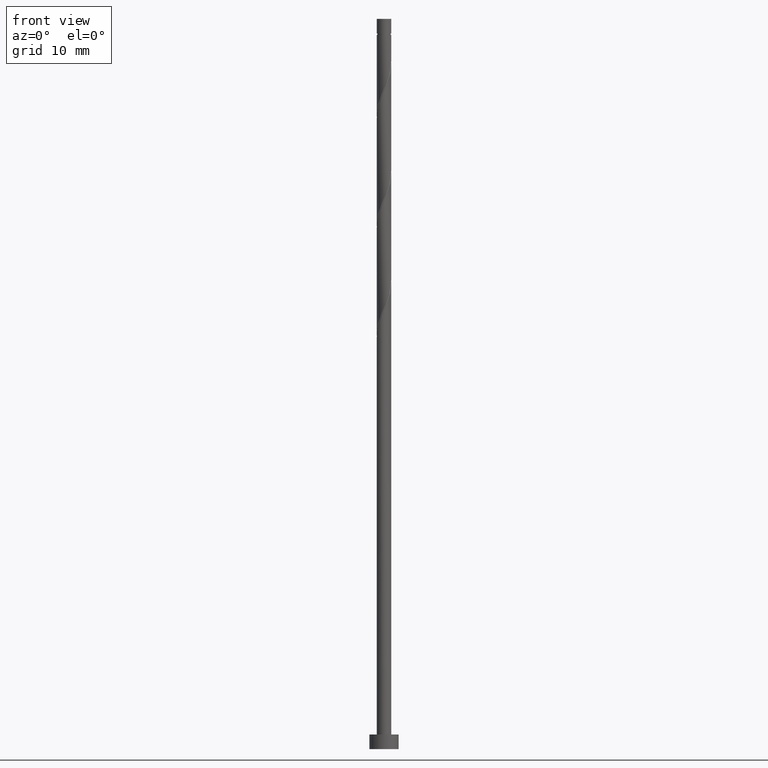
[diagram: clean part render]
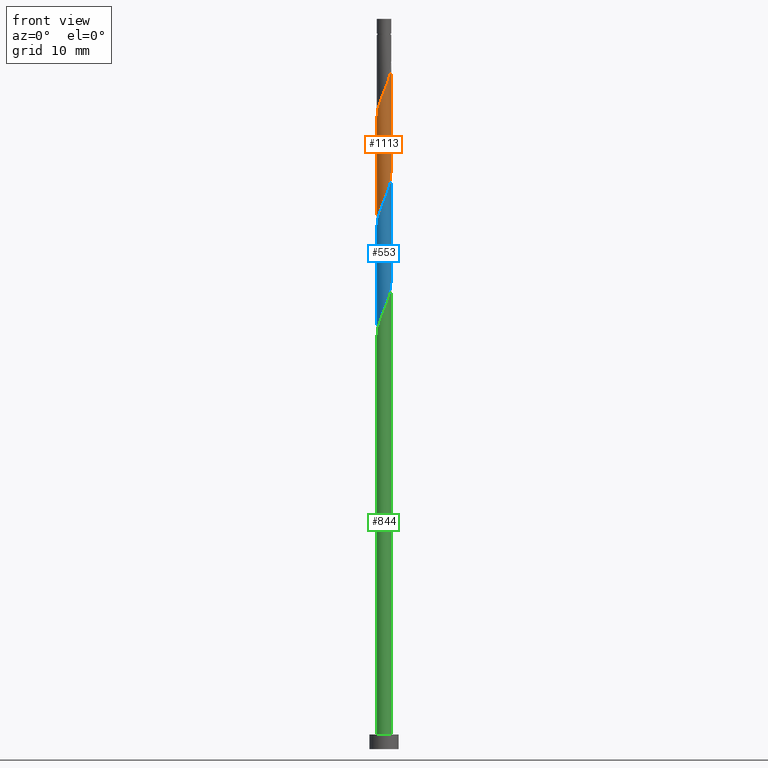
[diagram: same view with three faces highlighted in distinct colors, each labeled with its STEP entity id]
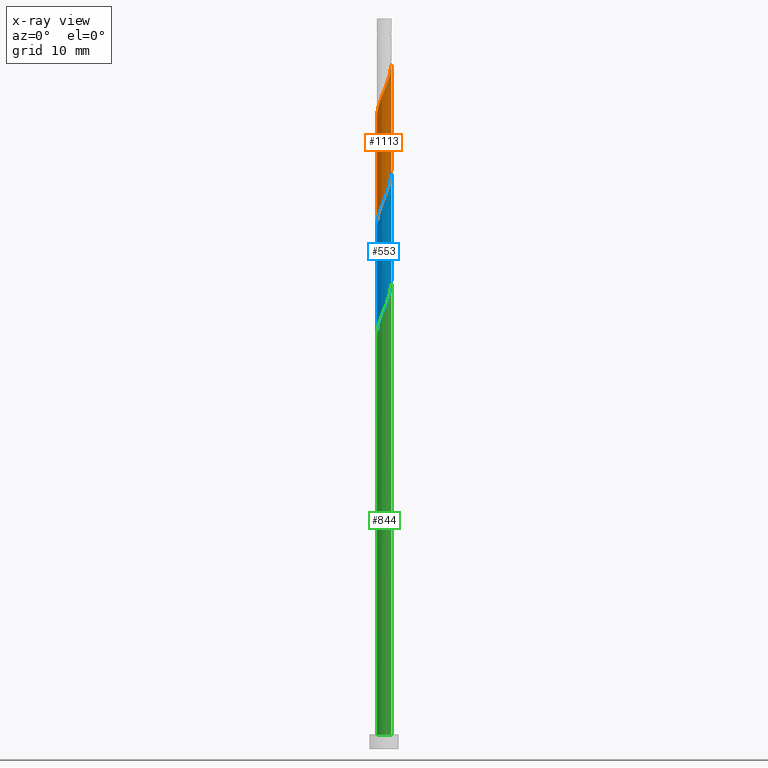
[diagram: x-ray of the same camera — body ghosted, the three highlighted faces saturated]
A machine part, front view with three faces highlighted in distinct colors.
The next image is the same camera in x-ray (body ghosted, the three faces saturated) — at least one of them is partly hidden behind the body in this view.
Their STEP definitions:

[orange] entity #1113 — the highlighted cylindrical surface (edge-blend (fillet) strip) has radius 1 mm, axis along (-0, -0, -1).
#12 = CARTESIAN_POINT ( 'NONE',  ( 0.000000000000000000, 0.000000000000000000, 100.0000000000000000 ) ) ;
#22 = CARTESIAN_POINT ( 'NONE',  ( -0.5630650428037469180, -0.8264125831401736288, 88.63333333333335418 ) ) ;
#31 = VERTEX_POINT ( 'NONE', #409 ) ;
#36 = CARTESIAN_POINT ( 'NONE',  ( -0.9116327376541120131, -0.4110057805399687791, 72.80000000000002558 ) ) ;
#45 =( BOUNDED_CURVE ( )  B_SPLINE_CURVE ( 2, ( #367, #835, #628, #1285, #1180, #818, #501, #246, #969, #267, #1066, #384, #140, #723, #599, #484, #36, #1050, #942, #961, #375 ),
 .UNSPECIFIED., .F., .T. ) 
 B_SPLINE_CURVE_WITH_KNOTS ( ( 3, 2, 2, 2, 2, 2, 2, 2, 2, 2, 3 ),
 ( 0.5585262615578963086, 0.5694444444444444198, 0.5833333333333333703, 0.5972222222222222099, 0.6111111111111111605, 0.6250000000000000000, 0.6388888888888888395, 0.6527777777777777901, 0.6666666666666666297, 0.6805555555555555802, 0.6835262615578967527 ),
 .UNSPECIFIED. ) 
 CURVE ( )  GEOMETRIC_REPRESENTATION_ITEM ( )  RATIONAL_B_SPLINE_CURVE ( ( 0.9475153373969255055, 0.9410068908218450767, 0.9523809523809528832, 0.9379121457259129713, 0.9523809523809528832, 0.9379121457259129713, 0.9523809523809528832, 0.9379121457259129713, 0.9523809523809528832, 0.9379121457259129713, 0.9523809523809528832, 0.9379121457259129713, 0.9523809523809528832, 0.9379121457259129713, 0.9523809523809528832, 0.9379121457259129713, 0.9523809523809528832, 0.9379121457259129713, 0.9523809523809528832, 0.9492862072850202226, 0.9475153373969248394 ) ) 
 REPRESENTATION_ITEM ( '' )  );
#46 = DIRECTION ( 'NONE',  ( -0.000000000000000000, -0.000000000000000000, -1.000000000000000000 ) ) ;
#59 = AXIS2_PLACEMENT_3D ( 'NONE', #12, #946, #1279 ) ;
#140 = CARTESIAN_POINT ( 'NONE',  ( -0.4341617696046366492, -0.9008349226211040950, 74.46666666666665435 ) ) ;
#152 = CARTESIAN_POINT ( 'NONE',  ( 0.9841041459904503741, -0.2502603323944278535, 93.21666666666666856 ) ) ;
#161 = CARTESIAN_POINT ( 'NONE',  ( 0.7160823004724661267, -0.6980158586665925480, 91.96666666666669698 ) ) ;
#172 = CARTESIAN_POINT ( 'NONE',  ( -1.000000000000000000, 0.000000000000000000, 100.0000000000000000 ) ) ;
#181 = CARTESIAN_POINT ( 'NONE',  ( -0.9625406160859104610, -0.2711375340762611774, 86.96666666666666856 ) ) ;
#211 = VERTEX_POINT ( 'NONE', #796 ) ;
#246 = CARTESIAN_POINT ( 'NONE',  ( 0.4173462071991564382, -0.9256961420802414242, 76.54999999999999716 ) ) ;
#261 = CARTESIAN_POINT ( 'NONE',  ( 0.8391613293177730970, -0.5717512286855108705, 92.38333333333331154 ) ) ;
#267 = CARTESIAN_POINT ( 'NONE',  ( 0.07557042402773136991, -1.012610643405466471, 75.71666666666666856 ) ) ;
#323 = EDGE_CURVE ( 'NONE', #31, #831, #345, .T. ) ;
#345 =( BOUNDED_CURVE ( )  B_SPLINE_CURVE ( 2, ( #1200, #863, #181, #1055, #506, #840, #22, #489, #363, #947, #1391, #1280, #729, #1411, #161, #261, #1171, #152, #458, #1145, #920 ),
 .UNSPECIFIED., .F., .T. ) 
 B_SPLINE_CURVE_WITH_KNOTS ( ( 3, 2, 2, 2, 2, 2, 2, 2, 2, 2, 3 ),
 ( 0.5585262615578964196, 0.5694444444444444198, 0.5833333333333332593, 0.5972222222222222099, 0.6111111111111111605, 0.6250000000000000000, 0.6388888888888888395, 0.6527777777777777901, 0.6666666666666667407, 0.6805555555555555802, 0.6835262615578969747 ),
 .UNSPECIFIED. ) 
 CURVE ( )  GEOMETRIC_REPRESENTATION_ITEM ( )  RATIONAL_B_SPLINE_CURVE ( ( 0.9475153373969233961, 0.9410068908218433004, 0.9523809523809509958, 0.9379121457259110839, 0.9523809523809509958, 0.9379121457259110839, 0.9523809523809509958, 0.9379121457259110839, 0.9523809523809509958, 0.9379121457259110839, 0.9523809523809509958, 0.9379121457259110839, 0.9523809523809509958, 0.9379121457259110839, 0.9523809523809509958, 0.9379121457259110839, 0.9523809523809509958, 0.9379121457259110839, 0.9523809523809509958, 0.9492862072850182242, 0.9475153373969227300 ) ) 
 REPRESENTATION_ITEM ( '' )  );
#363 = CARTESIAN_POINT ( 'NONE',  ( -0.2464583156134444175, -0.9691533927428536144, 89.46666666666669698 ) ) ;
#367 = CARTESIAN_POINT ( 'NONE',  ( 1.000000000000000222, -4.290968163101563064E-16, 79.28964864647366539 ) ) ;
#375 = CARTESIAN_POINT ( 'NONE',  ( -1.000000000000000000, -2.603187352281614199E-15, 71.78964864647365118 ) ) ;
#384 = CARTESIAN_POINT ( 'NONE',  ( -0.2753202675821139200, -0.9773893565945336315, 74.88333333333332575 ) ) ;
#409 = CARTESIAN_POINT ( 'NONE',  ( -1.000000000000000000, -8.581936326203144864E-17, 86.31035135352635734 ) ) ;
#458 = CARTESIAN_POINT ( 'NONE',  ( 0.9972268124083832896, -0.07442233948093021634, 93.63333333333335418 ) ) ;
#484 = CARTESIAN_POINT ( 'NONE',  ( -0.8391613293177733190, -0.5717512286855107595, 73.21666666666664014 ) ) ;
#489 = CARTESIAN_POINT ( 'NONE',  ( -0.4173462071991567157, -0.9256961420802413132, 89.04999999999999716 ) ) ;
#498 = EDGE_CURVE ( 'NONE', #831, #1196, #503, .T. ) ;
#501 = CARTESIAN_POINT ( 'NONE',  ( 0.5630650428037468069, -0.8264125831401737399, 76.96666666666666856 ) ) ;
#503 = LINE ( 'NONE', #1400, #1392 ) ;
#506 = CARTESIAN_POINT ( 'NONE',  ( -0.8117578158769209740, -0.5839942194600308278, 87.80000000000001137 ) ) ;
#599 = CARTESIAN_POINT ( 'NONE',  ( -0.7160823004724664598, -0.6980158586665924370, 73.63333333333332575 ) ) ;
#628 = CARTESIAN_POINT ( 'NONE',  ( 0.9625406160859105720, -0.2711375340762611219, 78.63333333333331154 ) ) ;
#646 = EDGE_CURVE ( 'NONE', #1196, #211, #45, .T. ) ;
#723 = CARTESIAN_POINT ( 'NONE',  ( -0.5930032716271594895, -0.8242804886476744475, 74.05000000000001137 ) ) ;
#729 = CARTESIAN_POINT ( 'NONE',  ( 0.4341617696046363717, -0.9008349226211040950, 91.13333333333332575 ) ) ;
#746 = LINE ( 'NONE', #172, #1230 ) ;
#796 = CARTESIAN_POINT ( 'NONE',  ( -1.000000000000000000, -2.603187352281614199E-15, 71.78964864647365118 ) ) ;
#818 = CARTESIAN_POINT ( 'NONE',  ( 0.7087838784083367871, -0.7271290242001067217, 77.38333333333332575 ) ) ;
#831 = VERTEX_POINT ( 'NONE', #967 ) ;
#835 = CARTESIAN_POINT ( 'NONE',  ( 1.000000000000000888, -0.1381563937346747262, 78.95980160168809903 ) ) ;
#840 = CARTESIAN_POINT ( 'NONE',  ( -0.7087838784083370092, -0.7271290242001063886, 88.21666666666666856 ) ) ;
#855 = CARTESIAN_POINT ( 'NONE',  ( 1.000000000000000222, -4.290968163101563064E-16, 79.28964864647366539 ) ) ;
#863 = CARTESIAN_POINT ( 'NONE',  ( -1.000000000000000444, -0.1381563937346758919, 86.64019839831189529 ) ) ;
#870 = EDGE_LOOP ( 'NONE', ( #1393, #1476, #1100, #1295 ) ) ;
#920 = CARTESIAN_POINT ( 'NONE',  ( 1.000000000000000000, 7.866774965686214893E-17, 93.81035135352635734 ) ) ;
#942 = CARTESIAN_POINT ( 'NONE',  ( -0.9972268124083832896, -0.07442233948093023022, 71.96666666666668277 ) ) ;
#946 = DIRECTION ( 'NONE',  ( -0.000000000000000000, -0.000000000000000000, -1.000000000000000000 ) ) ;
#947 = CARTESIAN_POINT ( 'NONE',  ( -0.07557042402773206380, -1.012610643405466249, 89.88333333333333997 ) ) ;
#961 = CARTESIAN_POINT ( 'NONE',  ( -1.000000000000000444, -0.03726283816067003929, 71.87861330974669727 ) ) ;
#965 = CYLINDRICAL_SURFACE ( 'NONE', #59, 1.000000000000000000 ) ;
#967 = CARTESIAN_POINT ( 'NONE',  ( 1.000000000000000000, 7.866774965686214893E-17, 93.81035135352635734 ) ) ;
#969 = CARTESIAN_POINT ( 'NONE',  ( 0.2464583156134441955, -0.9691533927428537254, 76.13333333333332575 ) ) ;
#1045 = FACE_OUTER_BOUND ( 'NONE', #870, .T. ) ;
#1050 = CARTESIAN_POINT ( 'NONE',  ( -0.9841041459904508182, -0.2502603323944273539, 72.38333333333333997 ) ) ;
#1055 = CARTESIAN_POINT ( 'NONE',  ( -0.9147317533455049388, -0.4408594147199554891, 87.38333333333331154 ) ) ;
#1066 = CARTESIAN_POINT ( 'NONE',  ( -0.09987492177719106690, -0.9949999999999999956, 75.30000000000002558 ) ) ;
#1100 = ORIENTED_EDGE ( 'NONE', *, *, #1213, .T. ) ;
#1113 = ADVANCED_FACE ( 'NONE', ( #1045 ), #965, .T. ) ;
#1145 = CARTESIAN_POINT ( 'NONE',  ( 1.000000000000000222, -0.03726283816066728455, 93.72138669025336810 ) ) ;
#1171 = CARTESIAN_POINT ( 'NONE',  ( 0.9116327376541116800, -0.4110057805399693898, 92.80000000000001137 ) ) ;
#1180 = CARTESIAN_POINT ( 'NONE',  ( 0.8117578158769208629, -0.5839942194600313830, 77.80000000000002558 ) ) ;
#1196 = VERTEX_POINT ( 'NONE', #855 ) ;
#1200 = CARTESIAN_POINT ( 'NONE',  ( -1.000000000000000000, -8.581936326203144864E-17, 86.31035135352635734 ) ) ;
#1213 = EDGE_CURVE ( 'NONE', #31, #211, #746, .T. ) ;
#1230 = VECTOR ( 'NONE', #1444, 1000.000000000000000 ) ;
#1279 = DIRECTION ( 'NONE',  ( -1.000000000000000000, 0.000000000000000000, 0.000000000000000000 ) ) ;
#1280 = CARTESIAN_POINT ( 'NONE',  ( 0.2753202675821132539, -0.9773893565945339645, 90.71666666666666856 ) ) ;
#1285 = CARTESIAN_POINT ( 'NONE',  ( 0.9147317533455048277, -0.4408594147199561553, 78.21666666666665435 ) ) ;
#1295 = ORIENTED_EDGE ( 'NONE', *, *, #646, .F. ) ;
#1391 = CARTESIAN_POINT ( 'NONE',  ( 0.09987492177719080322, -0.9949999999999999956, 90.29999999999999716 ) ) ;
#1392 = VECTOR ( 'NONE', #46, 1000.000000000000000 ) ;
#1393 = ORIENTED_EDGE ( 'NONE', *, *, #498, .F. ) ;
#1400 = CARTESIAN_POINT ( 'NONE',  ( 1.000000000000000000, 1.224646799147353207E-16, 100.0000000000000000 ) ) ;
#1411 = CARTESIAN_POINT ( 'NONE',  ( 0.5930032716271590454, -0.8242804886476744475, 91.54999999999999716 ) ) ;
#1444 = DIRECTION ( 'NONE',  ( -0.000000000000000000, -0.000000000000000000, -1.000000000000000000 ) ) ;
#1476 = ORIENTED_EDGE ( 'NONE', *, *, #323, .F. ) ;

[blue] entity #553 — the highlighted cylindrical surface (edge-blend (fillet) strip) has radius 1 mm, axis along (-0, -0, -1).
#33 = CARTESIAN_POINT ( 'NONE',  ( -1.000000000000000444, -0.03726283816067003929, 56.87861330974668306 ) ) ;
#44 = CARTESIAN_POINT ( 'NONE',  ( 1.000000000000000000, 7.866774965686214893E-17, 78.81035135352634313 ) ) ;
#52 = ORIENTED_EDGE ( 'NONE', *, *, #926, .F. ) ;
#85 = AXIS2_PLACEMENT_3D ( 'NONE', #798, #111, #1414 ) ;
#93 = CARTESIAN_POINT ( 'NONE',  ( 0.9625406160859105720, -0.2711375340762611219, 63.63333333333333286 ) ) ;
#103 = CARTESIAN_POINT ( 'NONE',  ( -0.2464583156134444175, -0.9691533927428536144, 74.46666666666666856 ) ) ;
#111 = DIRECTION ( 'NONE',  ( -0.000000000000000000, -0.000000000000000000, -1.000000000000000000 ) ) ;
#138 = CARTESIAN_POINT ( 'NONE',  ( -0.5930032716271594895, -0.8242804886476744475, 59.04999999999999005 ) ) ;
#169 = VERTEX_POINT ( 'NONE', #1016 ) ;
#219 = ORIENTED_EDGE ( 'NONE', *, *, #769, .T. ) ;
#221 = CARTESIAN_POINT ( 'NONE',  ( -0.9625406160859104610, -0.2711375340762611774, 71.96666666666669698 ) ) ;
#226 = CARTESIAN_POINT ( 'NONE',  ( -0.8117578158769209740, -0.5839942194600308278, 72.80000000000002558 ) ) ;
#234 = CARTESIAN_POINT ( 'NONE',  ( -0.07557042402773206380, -1.012610643405466249, 74.88333333333333997 ) ) ;
#263 = CARTESIAN_POINT ( 'NONE',  ( -0.9116327376541120131, -0.4110057805399687791, 57.80000000000000426 ) ) ;
#273 = VERTEX_POINT ( 'NONE', #481 ) ;
#310 = CARTESIAN_POINT ( 'NONE',  ( -1.000000000000000000, 0.000000000000000000, 100.0000000000000000 ) ) ;
#338 =( BOUNDED_CURVE ( )  B_SPLINE_CURVE ( 2, ( #446, #1252, #221, #680, #226, #799, #1357, #557, #103, #234, #909, #1477, #1139, #548, #1007, #1013, #563, #427, #1029, #435, #671 ),
 .UNSPECIFIED., .F., .T. ) 
 B_SPLINE_CURVE_WITH_KNOTS ( ( 3, 2, 2, 2, 2, 2, 2, 2, 2, 2, 3 ),
 ( 0.3085262615578962531, 0.3194444444444444198, 0.3333333333333333703, 0.3472222222222222099, 0.3611111111111111605, 0.3750000000000000000, 0.3888888888888888395, 0.4027777777777777901, 0.4166666666666666297, 0.4305555555555555802, 0.4335262615578967527 ),
 .UNSPECIFIED. ) 
 CURVE ( )  GEOMETRIC_REPRESENTATION_ITEM ( )  RATIONAL_B_SPLINE_CURVE ( ( 0.9475153373969236181, 0.9410068908218430783, 0.9523809523809509958, 0.9379121457259110839, 0.9523809523809509958, 0.9379121457259110839, 0.9523809523809509958, 0.9379121457259110839, 0.9523809523809509958, 0.9379121457259110839, 0.9523809523809509958, 0.9379121457259110839, 0.9523809523809509958, 0.9379121457259110839, 0.9523809523809509958, 0.9379121457259110839, 0.9523809523809509958, 0.9379121457259110839, 0.9523809523809509958, 0.9492862072850184463, 0.9475153373969230630 ) ) 
 REPRESENTATION_ITEM ( '' )  );
#370 = CARTESIAN_POINT ( 'NONE',  ( 1.000000000000000000, 1.224646799147353207E-16, 100.0000000000000000 ) ) ;
#403 = FACE_OUTER_BOUND ( 'NONE', #1137, .T. ) ;
#427 = CARTESIAN_POINT ( 'NONE',  ( 0.9841041459904503741, -0.2502603323944278535, 78.21666666666668277 ) ) ;
#432 = CARTESIAN_POINT ( 'NONE',  ( -0.2753202675821139200, -0.9773893565945336315, 59.88333333333334707 ) ) ;
#435 = CARTESIAN_POINT ( 'NONE',  ( 0.9999999999999997780, -0.03726283816067007398, 78.72138669025329705 ) ) ;
#446 = CARTESIAN_POINT ( 'NONE',  ( -1.000000000000000000, -8.581936326203146096E-17, 71.31035135352634313 ) ) ;
#450 = CARTESIAN_POINT ( 'NONE',  ( 1.000000000000000222, -4.290968163101563064E-16, 64.28964864647365118 ) ) ;
#474 = CARTESIAN_POINT ( 'NONE',  ( -0.9841041459904508182, -0.2502603323944273539, 57.38333333333332575 ) ) ;
#481 = CARTESIAN_POINT ( 'NONE',  ( 1.000000000000000222, -4.290968163101563064E-16, 64.28964864647365118 ) ) ;
#508 = VERTEX_POINT ( 'NONE', #944 ) ;
#548 = CARTESIAN_POINT ( 'NONE',  ( 0.5930032716271590454, -0.8242804886476744475, 76.55000000000001137 ) ) ;
#552 = CARTESIAN_POINT ( 'NONE',  ( 0.07557042402773136991, -1.012610643405466471, 60.71666666666666146 ) ) ;
#553 = ADVANCED_FACE ( 'NONE', ( #403 ), #1442, .T. ) ;
#557 = CARTESIAN_POINT ( 'NONE',  ( -0.4173462071991567157, -0.9256961420802413132, 74.05000000000002558 ) ) ;
#563 = CARTESIAN_POINT ( 'NONE',  ( 0.9116327376541116800, -0.4110057805399693898, 77.80000000000001137 ) ) ;
#577 = CARTESIAN_POINT ( 'NONE',  ( 0.9999999999999995559, -0.1381563937346788618, 63.95980160168808482 ) ) ;
#585 = CARTESIAN_POINT ( 'NONE',  ( 0.7087838784083367871, -0.7271290242001067217, 62.38333333333332575 ) ) ;
#593 = DIRECTION ( 'NONE',  ( -0.000000000000000000, -0.000000000000000000, -1.000000000000000000 ) ) ;
#597 = CARTESIAN_POINT ( 'NONE',  ( -0.7160823004724664598, -0.6980158586665924370, 58.63333333333332575 ) ) ;
#606 = VERTEX_POINT ( 'NONE', #44 ) ;
#671 = CARTESIAN_POINT ( 'NONE',  ( 1.000000000000000000, 7.866774965686214893E-17, 78.81035135352634313 ) ) ;
#680 = CARTESIAN_POINT ( 'NONE',  ( -0.9147317533455049388, -0.4408594147199554891, 72.38333333333331154 ) ) ;
#716 = CARTESIAN_POINT ( 'NONE',  ( -0.8391613293177733190, -0.5717512286855107595, 58.21666666666667567 ) ) ;
#763 = LINE ( 'NONE', #310, #901 ) ;
#769 = EDGE_CURVE ( 'NONE', #169, #508, #763, .T. ) ;
#790 = CARTESIAN_POINT ( 'NONE',  ( -0.4341617696046366492, -0.9008349226211040950, 59.46666666666667567 ) ) ;
#798 = CARTESIAN_POINT ( 'NONE',  ( 0.000000000000000000, 0.000000000000000000, 100.0000000000000000 ) ) ;
#799 = CARTESIAN_POINT ( 'NONE',  ( -0.7087838784083370092, -0.7271290242001063886, 73.21666666666666856 ) ) ;
#801 = EDGE_CURVE ( 'NONE', #273, #508, #1267, .T. ) ;
#822 = CARTESIAN_POINT ( 'NONE',  ( -0.9972268124083832896, -0.07442233948093023022, 56.96666666666666856 ) ) ;
#825 = VECTOR ( 'NONE', #593, 1000.000000000000000 ) ;
#901 = VECTOR ( 'NONE', #995, 1000.000000000000000 ) ;
#909 = CARTESIAN_POINT ( 'NONE',  ( 0.09987492177719080322, -0.9949999999999999956, 75.30000000000003979 ) ) ;
#915 = CARTESIAN_POINT ( 'NONE',  ( 0.8117578158769208629, -0.5839942194600313830, 62.79999999999999716 ) ) ;
#926 = EDGE_CURVE ( 'NONE', #606, #273, #1294, .T. ) ;
#944 = CARTESIAN_POINT ( 'NONE',  ( -1.000000000000000222, 1.930935673395703404E-16, 56.78964864647364408 ) ) ;
#949 = CARTESIAN_POINT ( 'NONE',  ( -1.000000000000000222, 1.930935673395703650E-16, 56.78964864647364408 ) ) ;
#989 = ORIENTED_EDGE ( 'NONE', *, *, #801, .F. ) ;
#995 = DIRECTION ( 'NONE',  ( -0.000000000000000000, -0.000000000000000000, -1.000000000000000000 ) ) ;
#1007 = CARTESIAN_POINT ( 'NONE',  ( 0.7160823004724661267, -0.6980158586665925480, 76.96666666666669698 ) ) ;
#1010 = CARTESIAN_POINT ( 'NONE',  ( 0.5630650428037468069, -0.8264125831401737399, 61.96666666666666856 ) ) ;
#1013 = CARTESIAN_POINT ( 'NONE',  ( 0.8391613293177730970, -0.5717512286855108705, 77.38333333333333997 ) ) ;
#1016 = CARTESIAN_POINT ( 'NONE',  ( -1.000000000000000000, -8.581936326203144864E-17, 71.31035135352634313 ) ) ;
#1029 = CARTESIAN_POINT ( 'NONE',  ( 0.9972268124083832896, -0.07442233948093021634, 78.63333333333332575 ) ) ;
#1033 = CARTESIAN_POINT ( 'NONE',  ( 0.9147317533455048277, -0.4408594147199561553, 63.21666666666667567 ) ) ;
#1124 = CARTESIAN_POINT ( 'NONE',  ( 0.2464583156134441955, -0.9691533927428537254, 61.13333333333333997 ) ) ;
#1137 = EDGE_LOOP ( 'NONE', ( #52, #1226, #219, #989 ) ) ;
#1139 = CARTESIAN_POINT ( 'NONE',  ( 0.4341617696046363717, -0.9008349226211040950, 76.13333333333333997 ) ) ;
#1226 = ORIENTED_EDGE ( 'NONE', *, *, #1480, .F. ) ;
#1252 = CARTESIAN_POINT ( 'NONE',  ( -1.000000000000000888, -0.1381563937346738657, 71.64019839831189529 ) ) ;
#1267 =( BOUNDED_CURVE ( )  B_SPLINE_CURVE ( 2, ( #450, #577, #93, #1033, #915, #585, #1010, #1486, #1124, #552, #1460, #432, #790, #138, #597, #716, #263, #474, #822, #33, #949 ),
 .UNSPECIFIED., .F., .T. ) 
 B_SPLINE_CURVE_WITH_KNOTS ( ( 3, 2, 2, 2, 2, 2, 2, 2, 2, 2, 3 ),
 ( 0.8085262615578966416, 0.8194444444444444198, 0.8333333333333333703, 0.8472222222222222099, 0.8611111111111111605, 0.8750000000000000000, 0.8888888888888888395, 0.9027777777777777901, 0.9166666666666666297, 0.9305555555555555802, 0.9335262615578967527 ),
 .UNSPECIFIED. ) 
 CURVE ( )  GEOMETRIC_REPRESENTATION_ITEM ( )  RATIONAL_B_SPLINE_CURVE ( ( 0.9475153373969250614, 0.9410068908218454098, 0.9523809523809528832, 0.9379121457259129713, 0.9523809523809528832, 0.9379121457259129713, 0.9523809523809528832, 0.9379121457259129713, 0.9523809523809528832, 0.9379121457259129713, 0.9523809523809528832, 0.9379121457259129713, 0.9523809523809528832, 0.9379121457259129713, 0.9523809523809528832, 0.9379121457259129713, 0.9523809523809528832, 0.9379121457259129713, 0.9523809523809528832, 0.9492862072850202226, 0.9475153373969248394 ) ) 
 REPRESENTATION_ITEM ( '' )  );
#1294 = LINE ( 'NONE', #370, #825 ) ;
#1357 = CARTESIAN_POINT ( 'NONE',  ( -0.5630650428037469180, -0.8264125831401736288, 73.63333333333332575 ) ) ;
#1414 = DIRECTION ( 'NONE',  ( -1.000000000000000000, 0.000000000000000000, 0.000000000000000000 ) ) ;
#1442 = CYLINDRICAL_SURFACE ( 'NONE', #85, 1.000000000000000000 ) ;
#1460 = CARTESIAN_POINT ( 'NONE',  ( -0.09987492177719106690, -0.9949999999999999956, 60.30000000000000426 ) ) ;
#1477 = CARTESIAN_POINT ( 'NONE',  ( 0.2753202675821132539, -0.9773893565945339645, 75.71666666666664014 ) ) ;
#1480 = EDGE_CURVE ( 'NONE', #169, #606, #338, .T. ) ;
#1486 = CARTESIAN_POINT ( 'NONE',  ( 0.4173462071991564382, -0.9256961420802414242, 61.54999999999999716 ) ) ;

[green] entity #844 — the highlighted cylindrical surface (edge-blend (fillet) strip) has radius 1 mm, axis along (-0, -0, -1).
#15 = VERTEX_POINT ( 'NONE', #653 ) ;
#61 = CARTESIAN_POINT ( 'NONE',  ( -0.8117578158769209740, -0.5839942194600308278, 57.80000000000000426 ) ) ;
#75 = LINE ( 'NONE', #97, #591 ) ;
#97 = CARTESIAN_POINT ( 'NONE',  ( -1.000000000000000000, 0.000000000000000000, 100.0000000000000000 ) ) ;
#100 = CARTESIAN_POINT ( 'NONE',  ( 0.9972268124083832896, -0.07442233948093021634, 63.63333333333334707 ) ) ;
#108 = CARTESIAN_POINT ( 'NONE',  ( 0.09987492177719080322, -0.9949999999999999956, 60.30000000000000426 ) ) ;
#117 = CARTESIAN_POINT ( 'NONE',  ( 1.000000000000000000, 7.866774965686214893E-17, 63.81035135352636445 ) ) ;
#125 = EDGE_CURVE ( 'NONE', #1192, #966, #734, .T. ) ;
#168 = EDGE_CURVE ( 'NONE', #15, #1192, #75, .T. ) ;
#208 = VECTOR ( 'NONE', #928, 1000.000000000000000 ) ;
#217 = CARTESIAN_POINT ( 'NONE',  ( 0.000000000000000000, 0.000000000000000000, 2.000000000000000000 ) ) ;
#245 = ORIENTED_EDGE ( 'NONE', *, *, #168, .T. ) ;
#306 = ORIENTED_EDGE ( 'NONE', *, *, #364, .F. ) ;
#325 = CARTESIAN_POINT ( 'NONE',  ( 0.9841041459904503741, -0.2502603323944278535, 63.21666666666666856 ) ) ;
#353 = CARTESIAN_POINT ( 'NONE',  ( 1.000000000000000000, 1.224646799147353207E-16, 2.000000000000000000 ) ) ;
#361 = AXIS2_PLACEMENT_3D ( 'NONE', #1404, #1151, #1382 ) ;
#364 = EDGE_CURVE ( 'NONE', #985, #966, #1253, .T. ) ;
#391 = ORIENTED_EDGE ( 'NONE', *, *, #779, .F. ) ;
#394 = CARTESIAN_POINT ( 'NONE',  ( -0.9625406160859104610, -0.2711375340762611774, 56.96666666666668277 ) ) ;
#443 = CARTESIAN_POINT ( 'NONE',  ( -0.7087838784083370092, -0.7271290242001063886, 58.21666666666666856 ) ) ;
#468 = CARTESIAN_POINT ( 'NONE',  ( 1.000000000000000000, 1.224646799147353207E-16, 100.0000000000000000 ) ) ;
#488 = CARTESIAN_POINT ( 'NONE',  ( 1.000000000000000000, 7.866774965686214893E-17, 63.81035135352636445 ) ) ;
#513 = EDGE_LOOP ( 'NONE', ( #306, #391, #245, #879 ) ) ;
#570 = CARTESIAN_POINT ( 'NONE',  ( -0.07557042402773206380, -1.012610643405466249, 59.88333333333335418 ) ) ;
#591 = VECTOR ( 'NONE', #876, 1000.000000000000000 ) ;
#619 = CYLINDRICAL_SURFACE ( 'NONE', #361, 1.000000000000000000 ) ;
#653 = CARTESIAN_POINT ( 'NONE',  ( -0.9999999999999997780, -8.453207281310098825E-15, 56.31035135352637155 ) ) ;
#669 = DIRECTION ( 'NONE',  ( 0.000000000000000000, 0.000000000000000000, 1.000000000000000000 ) ) ;
#685 = CARTESIAN_POINT ( 'NONE',  ( 0.5930032716271590454, -0.8242804886476744475, 61.55000000000001137 ) ) ;
#734 = CIRCLE ( 'NONE', #1024, 1.000000000000000000 ) ;
#779 = EDGE_CURVE ( 'NONE', #15, #985, #1128, .T. ) ;
#807 = CARTESIAN_POINT ( 'NONE',  ( -0.5630650428037469180, -0.8264125831401736288, 58.63333333333333286 ) ) ;
#812 = CARTESIAN_POINT ( 'NONE',  ( 0.7160823004724661267, -0.6980158586665925480, 61.96666666666666856 ) ) ;
#844 = ADVANCED_FACE ( 'NONE', ( #959 ), #619, .T. ) ;
#876 = DIRECTION ( 'NONE',  ( -0.000000000000000000, -0.000000000000000000, -1.000000000000000000 ) ) ;
#879 = ORIENTED_EDGE ( 'NONE', *, *, #125, .T. ) ;
#928 = DIRECTION ( 'NONE',  ( -0.000000000000000000, -0.000000000000000000, -1.000000000000000000 ) ) ;
#959 = FACE_OUTER_BOUND ( 'NONE', #513, .T. ) ;
#966 = VERTEX_POINT ( 'NONE', #353 ) ;
#985 = VERTEX_POINT ( 'NONE', #488 ) ;
#1024 = AXIS2_PLACEMENT_3D ( 'NONE', #217, #669, #1122 ) ;
#1094 = CARTESIAN_POINT ( 'NONE',  ( -0.9147317533455049388, -0.4408594147199554891, 57.38333333333333997 ) ) ;
#1122 = DIRECTION ( 'NONE',  ( 1.000000000000000000, 0.000000000000000000, 0.000000000000000000 ) ) ;
#1128 =( BOUNDED_CURVE ( )  B_SPLINE_CURVE ( 2, ( #1225, #1426, #394, #1094, #61, #443, #807, #1355, #1135, #570, #108, #1366, #1337, #685, #812, #1344, #1258, #325, #100, #1130, #117 ),
 .UNSPECIFIED., .F., .T. ) 
 B_SPLINE_CURVE_WITH_KNOTS ( ( 3, 2, 2, 2, 2, 2, 2, 2, 2, 2, 3 ),
 ( 0.05852626155789682205, 0.06944444444444441977, 0.08333333333333337034, 0.09722222222222220989, 0.1111111111111111605, 0.1250000000000000000, 0.1388888888888888395, 0.1527777777777777901, 0.1666666666666666297, 0.1805555555555555802, 0.1835262615578969192 ),
 .UNSPECIFIED. ) 
 CURVE ( )  GEOMETRIC_REPRESENTATION_ITEM ( )  RATIONAL_B_SPLINE_CURVE ( ( 0.9475153373969229520, 0.9410068908218436334, 0.9523809523809509958, 0.9379121457259110839, 0.9523809523809509958, 0.9379121457259110839, 0.9523809523809509958, 0.9379121457259110839, 0.9523809523809509958, 0.9379121457259110839, 0.9523809523809509958, 0.9379121457259110839, 0.9523809523809509958, 0.9379121457259110839, 0.9523809523809509958, 0.9379121457259110839, 0.9523809523809509958, 0.9379121457259110839, 0.9523809523809509958, 0.9492862072850182242, 0.9475153373969227300 ) ) 
 REPRESENTATION_ITEM ( '' )  );
#1130 = CARTESIAN_POINT ( 'NONE',  ( 1.000000000000000444, -0.03726283816066764537, 63.72138669025336100 ) ) ;
#1135 = CARTESIAN_POINT ( 'NONE',  ( -0.2464583156134444175, -0.9691533927428536144, 59.46666666666667567 ) ) ;
#1151 = DIRECTION ( 'NONE',  ( -0.000000000000000000, -0.000000000000000000, -1.000000000000000000 ) ) ;
#1192 = VERTEX_POINT ( 'NONE', #1209 ) ;
#1209 = CARTESIAN_POINT ( 'NONE',  ( -1.000000000000000000, 0.000000000000000000, 2.000000000000000000 ) ) ;
#1225 = CARTESIAN_POINT ( 'NONE',  ( -0.9999999999999997780, -8.453207281310098825E-15, 56.31035135352637155 ) ) ;
#1253 = LINE ( 'NONE', #468, #208 ) ;
#1258 = CARTESIAN_POINT ( 'NONE',  ( 0.9116327376541116800, -0.4110057805399693898, 62.79999999999999716 ) ) ;
#1337 = CARTESIAN_POINT ( 'NONE',  ( 0.4341617696046363717, -0.9008349226211040950, 61.13333333333334707 ) ) ;
#1344 = CARTESIAN_POINT ( 'NONE',  ( 0.8391613293177730970, -0.5717512286855108705, 62.38333333333333997 ) ) ;
#1355 = CARTESIAN_POINT ( 'NONE',  ( -0.4173462071991567157, -0.9256961420802413132, 59.05000000000000426 ) ) ;
#1366 = CARTESIAN_POINT ( 'NONE',  ( 0.2753202675821132539, -0.9773893565945339645, 60.71666666666666856 ) ) ;
#1382 = DIRECTION ( 'NONE',  ( -1.000000000000000000, 0.000000000000000000, 0.000000000000000000 ) ) ;
#1404 = CARTESIAN_POINT ( 'NONE',  ( 0.000000000000000000, 0.000000000000000000, 100.0000000000000000 ) ) ;
#1426 = CARTESIAN_POINT ( 'NONE',  ( -0.9999999999999988898, -0.1381563937346808602, 56.64019839831190950 ) ) ;